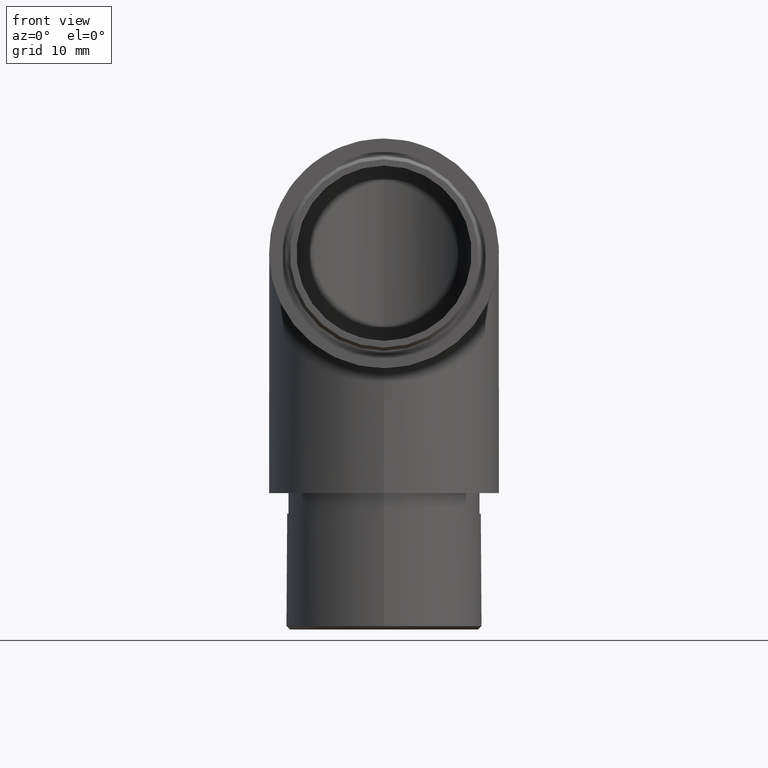
[diagram: clean part render]
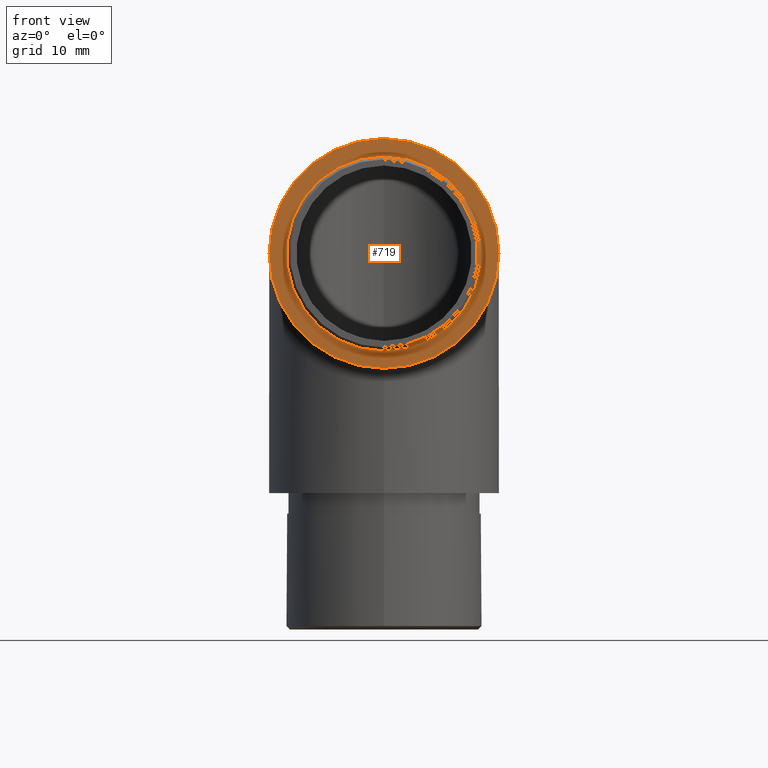
[diagram: same view with one face highlighted and labeled with its STEP entity id]
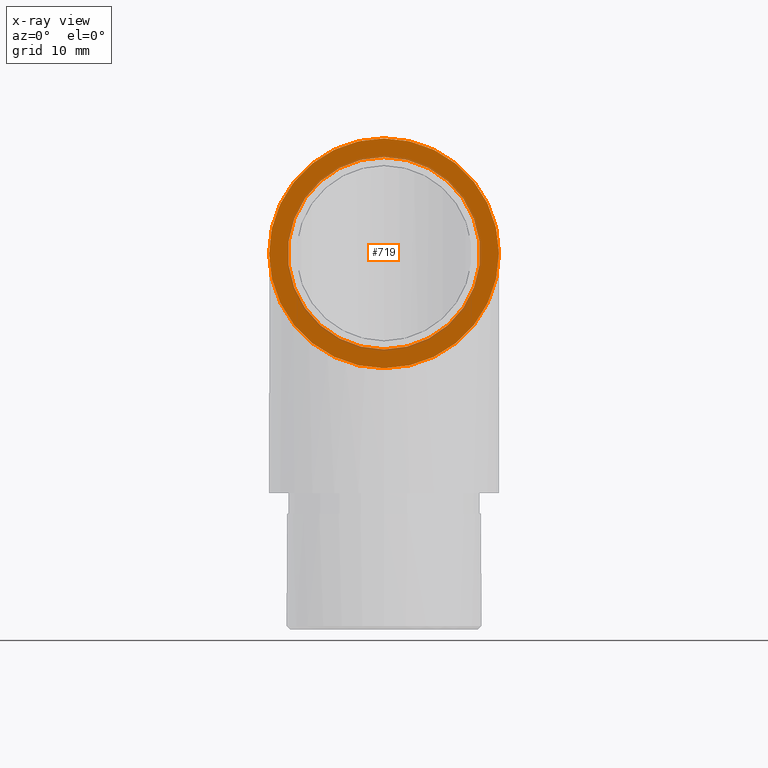
[diagram: x-ray of the same camera — body ghosted, the highlighted face saturated]
A machine part, front view. The second image highlights one B-rep face of the part: STEP entity #719.
The next image is the same camera in x-ray: the body ghosted, the highlighted face saturated — about 7% of this face is hidden behind the body in this view.
In plain terms, the highlighted planar face has unit normal (0, 1, 0).
Its self-contained STEP definition (entity closure, byte-faithful):
#491 = CARTESIAN_POINT ( 'NONE',  ( 0.000000000000000000, 0.000000000000000000, 0.000000000000000000 ) ) ;
#719 = ADVANCED_FACE ( 'NONE', ( #4739, #9173 ), #12549, .F. ) ;
#824 = CARTESIAN_POINT ( 'NONE',  ( 0.000000000000000000, 0.000000000000000000, 14.10000000000000142 ) ) ;
#854 = DIRECTION ( 'NONE',  ( 0.000000000000000000, 1.000000000000000000, 0.000000000000000000 ) ) ;
#1156 = DIRECTION ( 'NONE',  ( 0.000000000000000000, 1.000000000000000000, 0.000000000000000000 ) ) ;
#1507 = VERTEX_POINT ( 'NONE', #7936 ) ;
#1525 = AXIS2_PLACEMENT_3D ( 'NONE', #491, #4044, #4002 ) ;
#1908 = ORIENTED_EDGE ( 'NONE', *, *, #9394, .F. ) ;
#1988 = DIRECTION ( 'NONE',  ( 0.000000000000000000, 0.000000000000000000, 1.000000000000000000 ) ) ;
#2222 = CIRCLE ( 'NONE', #10551, 14.10000000000000142 ) ;
#2551 = ORIENTED_EDGE ( 'NONE', *, *, #10452, .F. ) ;
#2615 = VERTEX_POINT ( 'NONE', #11699 ) ;
#2757 = CARTESIAN_POINT ( 'NONE',  ( 0.000000000000000000, 0.000000000000000000, 0.000000000000000000 ) ) ;
#3649 = DIRECTION ( 'NONE',  ( 0.000000000000000000, 1.000000000000000000, 0.000000000000000000 ) ) ;
#4002 = DIRECTION ( 'NONE',  ( 0.000000000000000000, 0.000000000000000000, 1.000000000000000000 ) ) ;
#4044 = DIRECTION ( 'NONE',  ( -0.000000000000000000, -1.000000000000000000, -0.000000000000000000 ) ) ;
#4739 = FACE_OUTER_BOUND ( 'NONE', #10459, .T. ) ;
#5808 = EDGE_LOOP ( 'NONE', ( #5836, #9758 ) ) ;
#5836 = ORIENTED_EDGE ( 'NONE', *, *, #8913, .F. ) ;
#6537 = AXIS2_PLACEMENT_3D ( 'NONE', #7020, #1156, #8039 ) ;
#6705 = CARTESIAN_POINT ( 'NONE',  ( 0.000000000000000000, 0.000000000000000000, 0.000000000000000000 ) ) ;
#6836 = CARTESIAN_POINT ( 'NONE',  ( 0.000000000000000000, 0.000000000000000000, 0.000000000000000000 ) ) ;
#7020 = CARTESIAN_POINT ( 'NONE',  ( 0.000000000000000000, 0.000000000000000000, 0.000000000000000000 ) ) ;
#7531 = AXIS2_PLACEMENT_3D ( 'NONE', #2757, #3649, #10486 ) ;
#7936 = CARTESIAN_POINT ( 'NONE',  ( 1.726751986797768192E-15, 0.000000000000000000, -14.10000000000000142 ) ) ;
#8039 = DIRECTION ( 'NONE',  ( 0.000000000000000000, 0.000000000000000000, 1.000000000000000000 ) ) ;
#8156 = VERTEX_POINT ( 'NONE', #11395 ) ;
#8657 = DIRECTION ( 'NONE',  ( 0.000000000000000000, -0.000000000000000000, 1.000000000000000000 ) ) ;
#8913 = EDGE_CURVE ( 'NONE', #12200, #1507, #11296, .T. ) ;
#9111 = AXIS2_PLACEMENT_3D ( 'NONE', #6705, #854, #8657 ) ;
#9173 = FACE_BOUND ( 'NONE', #5808, .T. ) ;
#9394 = EDGE_CURVE ( 'NONE', #2615, #8156, #11590, .T. ) ;
#9758 = ORIENTED_EDGE ( 'NONE', *, *, #12308, .F. ) ;
#9764 = DIRECTION ( 'NONE',  ( -0.000000000000000000, -1.000000000000000000, -0.000000000000000000 ) ) ;
#10452 = EDGE_CURVE ( 'NONE', #8156, #2615, #12496, .T. ) ;
#10459 = EDGE_LOOP ( 'NONE', ( #1908, #2551 ) ) ;
#10486 = DIRECTION ( 'NONE',  ( 0.000000000000000000, 0.000000000000000000, 1.000000000000000000 ) ) ;
#10551 = AXIS2_PLACEMENT_3D ( 'NONE', #6836, #9764, #1988 ) ;
#11296 = CIRCLE ( 'NONE', #1525, 14.10000000000000142 ) ;
#11395 = CARTESIAN_POINT ( 'NONE',  ( 2.063529856563290244E-15, 0.000000000000000000, 16.85000000000000142 ) ) ;
#11590 = CIRCLE ( 'NONE', #6537, 16.85000000000000142 ) ;
#11699 = CARTESIAN_POINT ( 'NONE',  ( 0.000000000000000000, 0.000000000000000000, -16.85000000000000142 ) ) ;
#12200 = VERTEX_POINT ( 'NONE', #824 ) ;
#12308 = EDGE_CURVE ( 'NONE', #1507, #12200, #2222, .T. ) ;
#12496 = CIRCLE ( 'NONE', #7531, 16.85000000000000142 ) ;
#12549 = PLANE ( 'NONE',  #9111 ) ;